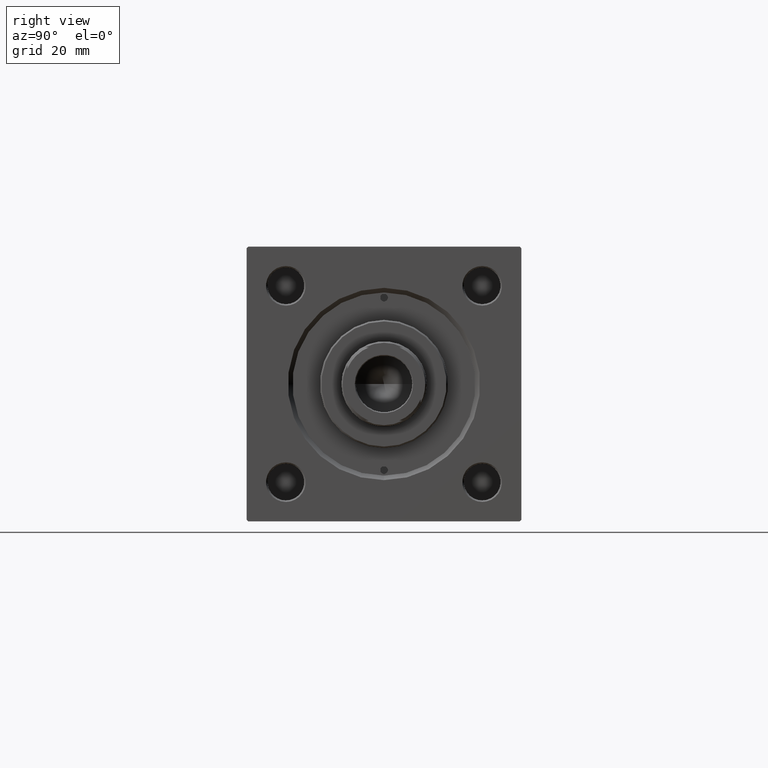
[diagram: clean part render]
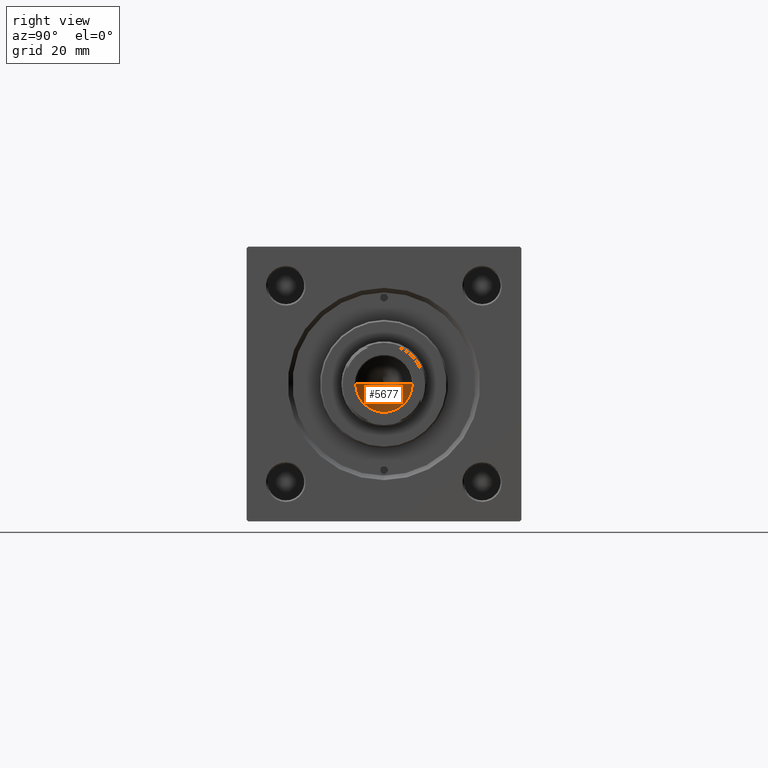
[diagram: same view with one face highlighted and labeled with its STEP entity id]
A machine part, right view. The second image highlights one B-rep face of the part: STEP entity #5677.
In plain terms, the highlighted conical surface has half-angle 59 deg.
Its self-contained STEP definition (entity closure, byte-faithful):
#854 = LINE ( 'NONE', #21246, #33929 ) ;
#1255 = VERTEX_POINT ( 'NONE', #33758 ) ;
#2079 = DIRECTION ( 'NONE',  ( 1.000000000000000000, 0.000000000000000000, 0.000000000000000000 ) ) ;
#3192 = DIRECTION ( 'NONE',  ( -0.8571673007021117785, 1.049727191138617956E-16, 0.5150380749100550437 ) ) ;
#5677 = ADVANCED_FACE ( 'NONE', ( #9732 ), #11724, .F. ) ;
#6160 = CARTESIAN_POINT ( 'NONE',  ( 0.000000000000000000, 0.000000000000000000, 114.9999999999999858 ) ) ;
#7625 = ORIENTED_EDGE ( 'NONE', *, *, #18463, .F. ) ;
#9732 = FACE_OUTER_BOUND ( 'NONE', #28904, .T. ) ;
#11724 = CONICAL_SURFACE ( 'NONE', #37769, 9.249999999999992895, 1.029744258676653423 ) ;
#11878 = ORIENTED_EDGE ( 'NONE', *, *, #17252, .T. ) ;
#13943 = AXIS2_PLACEMENT_3D ( 'NONE', #50215, #17714, #26787 ) ;
#17134 = ORIENTED_EDGE ( 'NONE', *, *, #30532, .T. ) ;
#17252 = EDGE_CURVE ( 'NONE', #25430, #1255, #854, .T. ) ;
#17714 = DIRECTION ( 'NONE',  ( -0.000000000000000000, -0.000000000000000000, 1.000000000000000000 ) ) ;
#18463 = EDGE_CURVE ( 'NONE', #25430, #42987, #26126, .T. ) ;
#18814 = CIRCLE ( 'NONE', #13943, 9.249999999999992895 ) ;
#21246 = CARTESIAN_POINT ( 'NONE',  ( 9.249999999999992895, 0.000000000000000000, 114.9999999999999858 ) ) ;
#25259 = DIRECTION ( 'NONE',  ( -0.000000000000000000, -0.000000000000000000, 1.000000000000000000 ) ) ;
#25430 = VERTEX_POINT ( 'NONE', #43539 ) ;
#25863 = VECTOR ( 'NONE', #3192, 1000.000000000000000 ) ;
#26126 = LINE ( 'NONE', #29705, #25863 ) ;
#26787 = DIRECTION ( 'NONE',  ( 1.000000000000000000, 0.000000000000000000, 0.000000000000000000 ) ) ;
#28904 = EDGE_LOOP ( 'NONE', ( #7625, #11878, #17134 ) ) ;
#29705 = CARTESIAN_POINT ( 'NONE',  ( -9.249999999999992895, 1.132798289211300712E-15, 114.9999999999999858 ) ) ;
#30532 = EDGE_CURVE ( 'NONE', #1255, #42987, #18814, .T. ) ;
#33758 = CARTESIAN_POINT ( 'NONE',  ( 9.249999999999992895, 0.000000000000000000, 114.9999999999999858 ) ) ;
#33929 = VECTOR ( 'NONE', #35743, 1000.000000000000000 ) ;
#35743 = DIRECTION ( 'NONE',  ( 0.8571673007021117785, 0.000000000000000000, 0.5150380749100550437 ) ) ;
#37769 = AXIS2_PLACEMENT_3D ( 'NONE', #6160, #25259, #2079 ) ;
#42987 = VERTEX_POINT ( 'NONE', #43091 ) ;
#43091 = CARTESIAN_POINT ( 'NONE',  ( -9.249999999999992895, 1.132798289211300712E-15, 114.9999999999999858 ) ) ;
#43539 = CARTESIAN_POINT ( 'NONE',  ( -9.769621978240258809E-15, 0.000000000000000000, 109.4420392739950501 ) ) ;
#50215 = CARTESIAN_POINT ( 'NONE',  ( 0.000000000000000000, 0.000000000000000000, 114.9999999999999858 ) ) ;